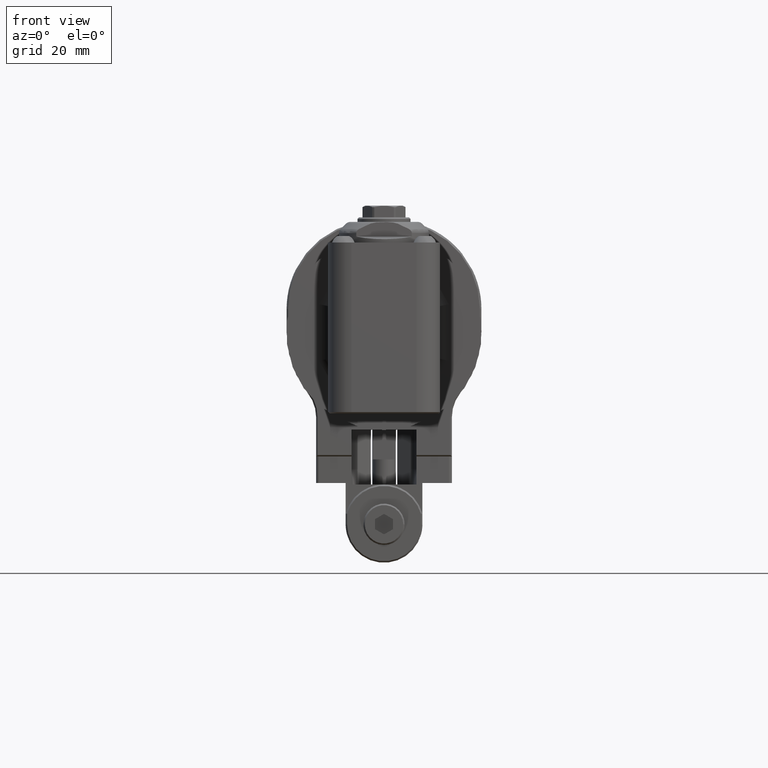
[diagram: clean part render]
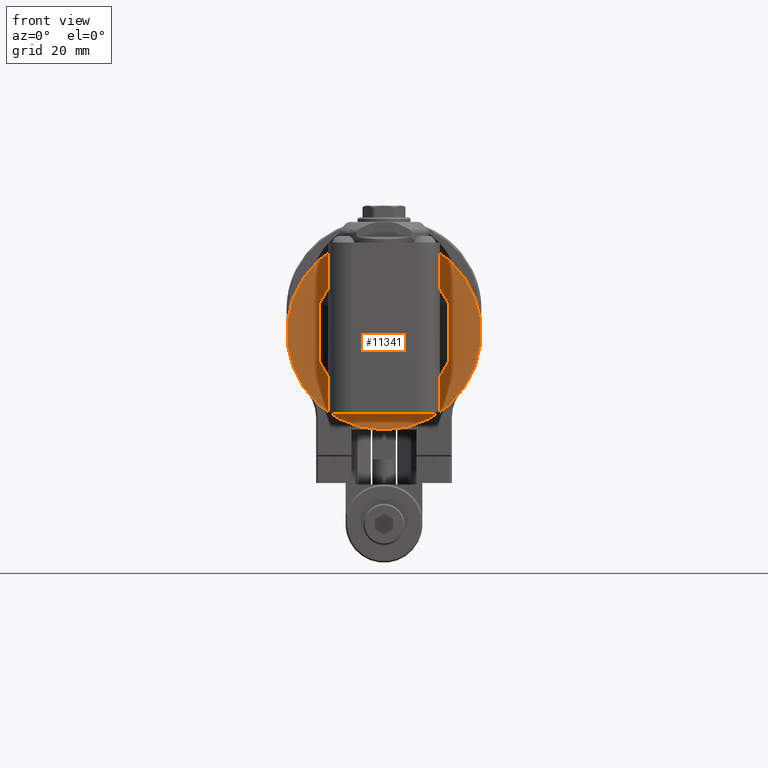
[diagram: same view with one face highlighted and labeled with its STEP entity id]
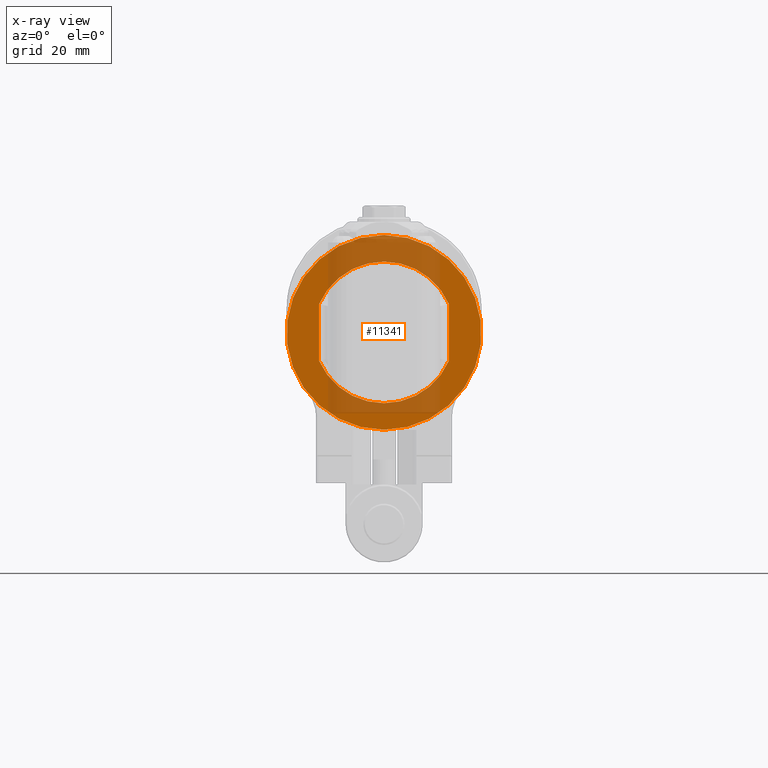
[diagram: x-ray of the same camera — body ghosted, the highlighted face saturated]
A machine part, front view. The second image highlights one B-rep face of the part: STEP entity #11341.
The next image is the same camera in x-ray: the body ghosted, the highlighted face saturated — about 38% of this face is hidden behind the body in this view.
In plain terms, the highlighted planar face has unit normal (0, -1, -0).
Its self-contained STEP definition (entity closure, byte-faithful):
#474=LINE('',#17112,#1351);
#475=LINE('',#17116,#1352);
#1351=VECTOR('',#13532,19.18332609325);
#1352=VECTOR('',#13535,19.18332609325);
#2417=FACE_BOUND('',#3286,.T.);
#2555=FACE_OUTER_BOUND('',#3285,.T.);
#3285=EDGE_LOOP('',(#7609));
#3286=EDGE_LOOP('',(#7610,#7611,#7612,#7613));
#4141=CIRCLE('',#12151,33.);
#4142=CIRCLE('',#12153,24.);
#4143=CIRCLE('',#12154,24.);
#4769=VERTEX_POINT('',#17106);
#4770=VERTEX_POINT('',#17110);
#4771=VERTEX_POINT('',#17111);
#4772=VERTEX_POINT('',#17113);
#4773=VERTEX_POINT('',#17115);
#5892=EDGE_CURVE('',#4769,#4769,#4141,.T.);
#5894=EDGE_CURVE('',#4770,#4771,#474,.T.);
#5895=EDGE_CURVE('',#4770,#4772,#4142,.T.);
#5896=EDGE_CURVE('',#4773,#4772,#475,.T.);
#5897=EDGE_CURVE('',#4773,#4771,#4143,.T.);
#7609=ORIENTED_EDGE('',*,*,#5892,.T.);
#7610=ORIENTED_EDGE('',*,*,#5894,.F.);
#7611=ORIENTED_EDGE('',*,*,#5895,.T.);
#7612=ORIENTED_EDGE('',*,*,#5896,.F.);
#7613=ORIENTED_EDGE('',*,*,#5897,.T.);
#10980=PLANE('',#12152);
#11341=ADVANCED_FACE('',(#2555,#2417),#10980,.T.);
#12151=AXIS2_PLACEMENT_3D('',#17107,#13527,#13528);
#12152=AXIS2_PLACEMENT_3D('',#17109,#13530,#13531);
#12153=AXIS2_PLACEMENT_3D('',#17114,#13533,#13534);
#12154=AXIS2_PLACEMENT_3D('',#17117,#13536,#13537);
#13527=DIRECTION('center_axis',(1.,0.,0.));
#13528=DIRECTION('ref_axis',(0.,1.,0.));
#13530=DIRECTION('center_axis',(1.,0.,0.));
#13531=DIRECTION('ref_axis',(0.,-1.,0.));
#13532=DIRECTION('',(0.,-1.,0.));
#13533=DIRECTION('center_axis',(-1.,0.,0.));
#13534=DIRECTION('ref_axis',(0.,0.399652626942692,0.916666666666682));
#13535=DIRECTION('',(0.,1.,0.));
#13536=DIRECTION('center_axis',(-1.,0.,0.));
#13537=DIRECTION('ref_axis',(0.,-0.399652626942692,-0.916666666666682));
#17106=CARTESIAN_POINT('',(65.,33.,0.));
#17107=CARTESIAN_POINT('Origin',(65.,0.,0.));
#17109=CARTESIAN_POINT('Origin',(65.,-29.5,0.));
#17110=CARTESIAN_POINT('',(65.,9.591663046625,22.));
#17111=CARTESIAN_POINT('',(65.,-9.591663046625,22.));
#17112=CARTESIAN_POINT('',(65.,9.591663046625,22.));
#17113=CARTESIAN_POINT('',(65.,9.591663046625,-22.));
#17114=CARTESIAN_POINT('Origin',(65.,0.,0.));
#17115=CARTESIAN_POINT('',(65.,-9.591663046625,-22.));
#17116=CARTESIAN_POINT('',(65.,-9.591663046625,-22.));
#17117=CARTESIAN_POINT('Origin',(65.,0.,0.));